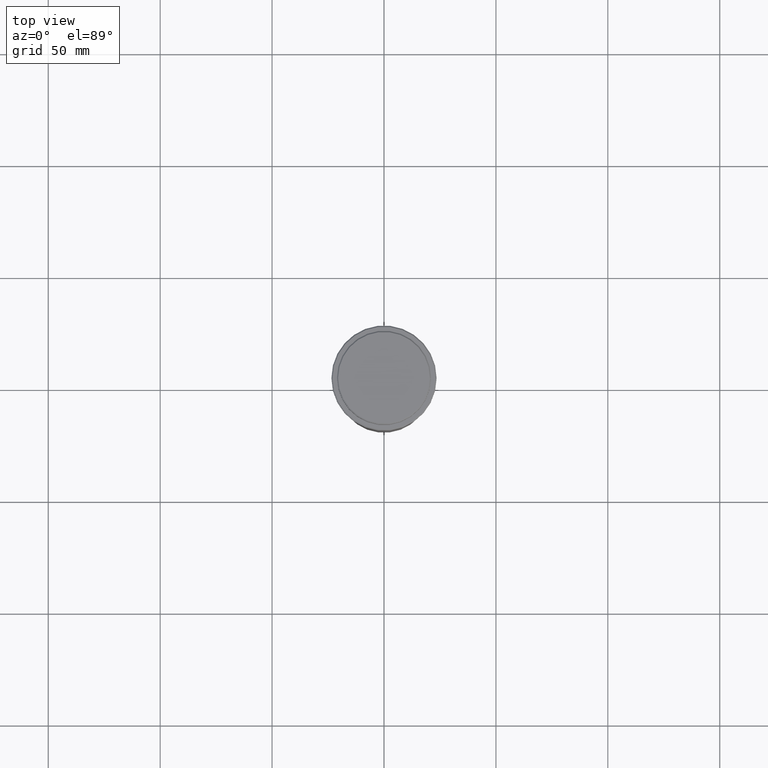
[diagram: clean part render]
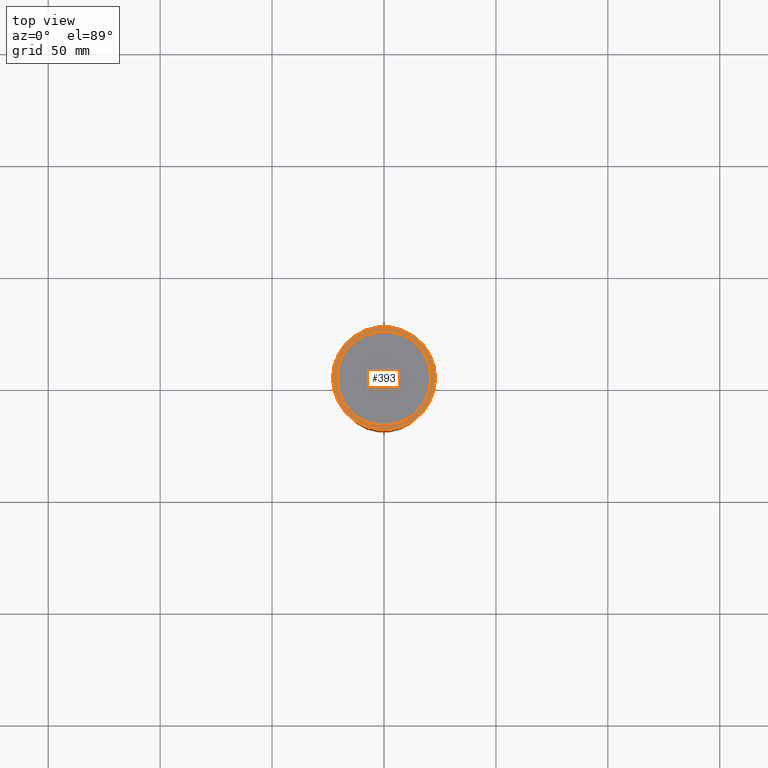
[diagram: same view with one face highlighted and labeled with its STEP entity id]
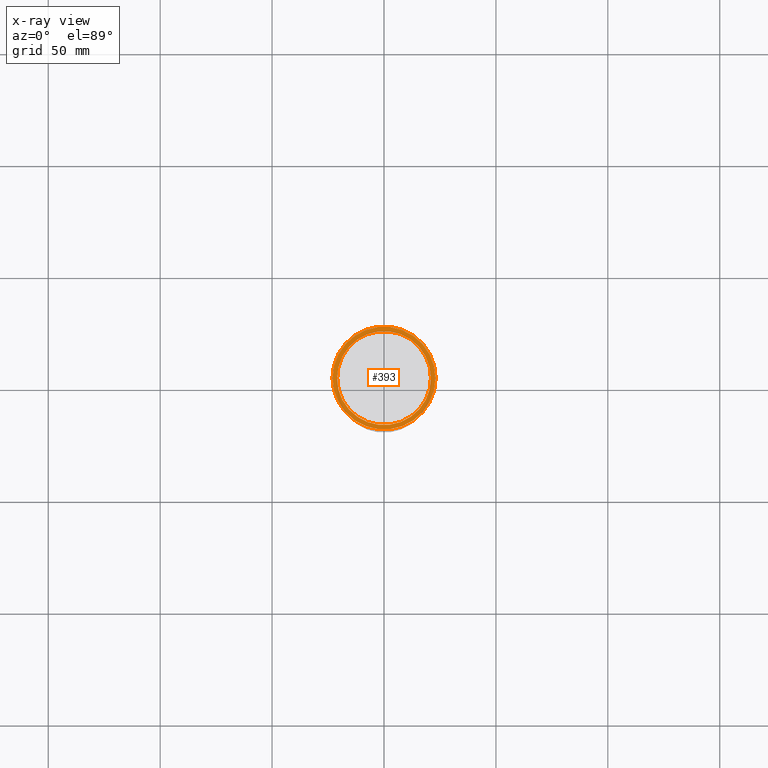
[diagram: x-ray of the same camera — body ghosted, the highlighted face saturated]
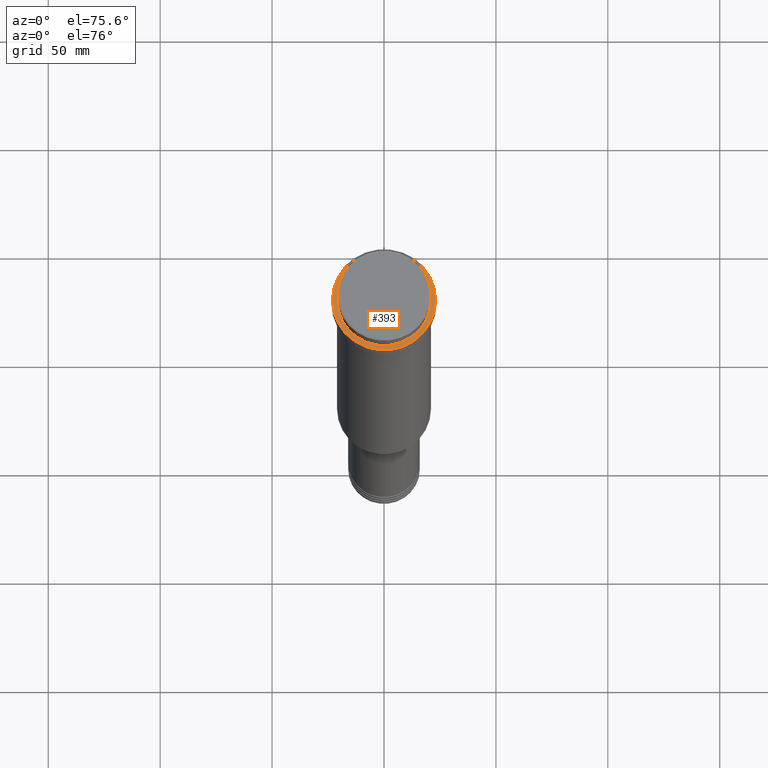
[diagram: same view with one face highlighted and labeled with its STEP entity id]
A machine part, top view. The second image highlights one B-rep face of the part: STEP entity #393.
The next image is the same camera in x-ray: the body ghosted, the highlighted face saturated — about 0% of this face is hidden behind the body in this view.
A second angle (auxiliary view) of the same face is appended — the face is thin or edge-on in the first view.
In plain terms, the highlighted planar face has unit normal (0, -0, 1).
Its self-contained STEP definition (entity closure, byte-faithful):
#17 = DIRECTION ( 'NONE',  ( 1.000000000000000000, 0.000000000000000000, 0.000000000000000000 ) ) ;
#70 = CARTESIAN_POINT ( 'NONE',  ( 0.000000000000000000, 0.000000000000000000, -9.000000000000001776 ) ) ;
#80 = AXIS2_PLACEMENT_3D ( 'NONE', #1207, #1308, #17 ) ;
#94 = AXIS2_PLACEMENT_3D ( 'NONE', #70, #719, #1149 ) ;
#111 = ORIENTED_EDGE ( 'NONE', *, *, #1234, .T. ) ;
#150 = FACE_BOUND ( 'NONE', #602, .T. ) ;
#170 = CIRCLE ( 'NONE', #80, 23.00000000000002487 ) ;
#267 = DIRECTION ( 'NONE',  ( 1.000000000000000000, 0.000000000000000000, 0.000000000000000000 ) ) ;
#310 = CIRCLE ( 'NONE', #481, 23.00000000000002487 ) ;
#327 = CARTESIAN_POINT ( 'NONE',  ( 0.000000000000000000, 0.000000000000000000, -9.000000000000001776 ) ) ;
#341 = ORIENTED_EDGE ( 'NONE', *, *, #1086, .T. ) ;
#380 = DIRECTION ( 'NONE',  ( 0.000000000000000000, -0.000000000000000000, 1.000000000000000000 ) ) ;
#393 = ADVANCED_FACE ( 'NONE', ( #579, #150 ), #803, .T. ) ;
#439 = CIRCLE ( 'NONE', #1262, 20.99999999999999289 ) ;
#440 = DIRECTION ( 'NONE',  ( 1.000000000000000000, 0.000000000000000000, 0.000000000000000000 ) ) ;
#444 = DIRECTION ( 'NONE',  ( 1.000000000000000000, 0.000000000000000000, 0.000000000000000000 ) ) ;
#481 = AXIS2_PLACEMENT_3D ( 'NONE', #327, #758, #444 ) ;
#494 = CARTESIAN_POINT ( 'NONE',  ( 23.00000000000002487, 2.847303808017597717E-15, -9.000000000000001776 ) ) ;
#552 = VERTEX_POINT ( 'NONE', #755 ) ;
#579 = FACE_OUTER_BOUND ( 'NONE', #643, .T. ) ;
#602 = EDGE_LOOP ( 'NONE', ( #341, #827 ) ) ;
#643 = EDGE_LOOP ( 'NONE', ( #1178, #111 ) ) ;
#719 = DIRECTION ( 'NONE',  ( 0.000000000000000000, 0.000000000000000000, -1.000000000000000000 ) ) ;
#736 = VERTEX_POINT ( 'NONE', #494 ) ;
#755 = CARTESIAN_POINT ( 'NONE',  ( 20.99999999999999289, 0.000000000000000000, -9.000000000000001776 ) ) ;
#758 = DIRECTION ( 'NONE',  ( -0.000000000000000000, -0.000000000000000000, 1.000000000000000000 ) ) ;
#775 = DIRECTION ( 'NONE',  ( 0.000000000000000000, 0.000000000000000000, -1.000000000000000000 ) ) ;
#803 = PLANE ( 'NONE',  #1401 ) ;
#827 = ORIENTED_EDGE ( 'NONE', *, *, #1333, .T. ) ;
#872 = CARTESIAN_POINT ( 'NONE',  ( -20.99999999999999289, 2.571758278209440872E-15, -9.000000000000001776 ) ) ;
#1011 = CIRCLE ( 'NONE', #94, 20.99999999999999289 ) ;
#1020 = CARTESIAN_POINT ( 'NONE',  ( 0.000000000000000000, 20.49999999999999645, -9.000000000000001776 ) ) ;
#1072 = VERTEX_POINT ( 'NONE', #872 ) ;
#1086 = EDGE_CURVE ( 'NONE', #552, #1072, #1011, .T. ) ;
#1088 = CARTESIAN_POINT ( 'NONE',  ( 0.000000000000000000, 0.000000000000000000, -9.000000000000001776 ) ) ;
#1137 = VERTEX_POINT ( 'NONE', #1405 ) ;
#1149 = DIRECTION ( 'NONE',  ( 1.000000000000000000, 0.000000000000000000, 0.000000000000000000 ) ) ;
#1178 = ORIENTED_EDGE ( 'NONE', *, *, #1240, .T. ) ;
#1207 = CARTESIAN_POINT ( 'NONE',  ( 0.000000000000000000, 0.000000000000000000, -9.000000000000001776 ) ) ;
#1234 = EDGE_CURVE ( 'NONE', #736, #1137, #170, .T. ) ;
#1240 = EDGE_CURVE ( 'NONE', #1137, #736, #310, .T. ) ;
#1262 = AXIS2_PLACEMENT_3D ( 'NONE', #1088, #775, #440 ) ;
#1308 = DIRECTION ( 'NONE',  ( -0.000000000000000000, -0.000000000000000000, 1.000000000000000000 ) ) ;
#1333 = EDGE_CURVE ( 'NONE', #1072, #552, #439, .T. ) ;
#1401 = AXIS2_PLACEMENT_3D ( 'NONE', #1020, #380, #267 ) ;
#1405 = CARTESIAN_POINT ( 'NONE',  ( -23.00000000000002487, 0.000000000000000000, -9.000000000000001776 ) ) ;